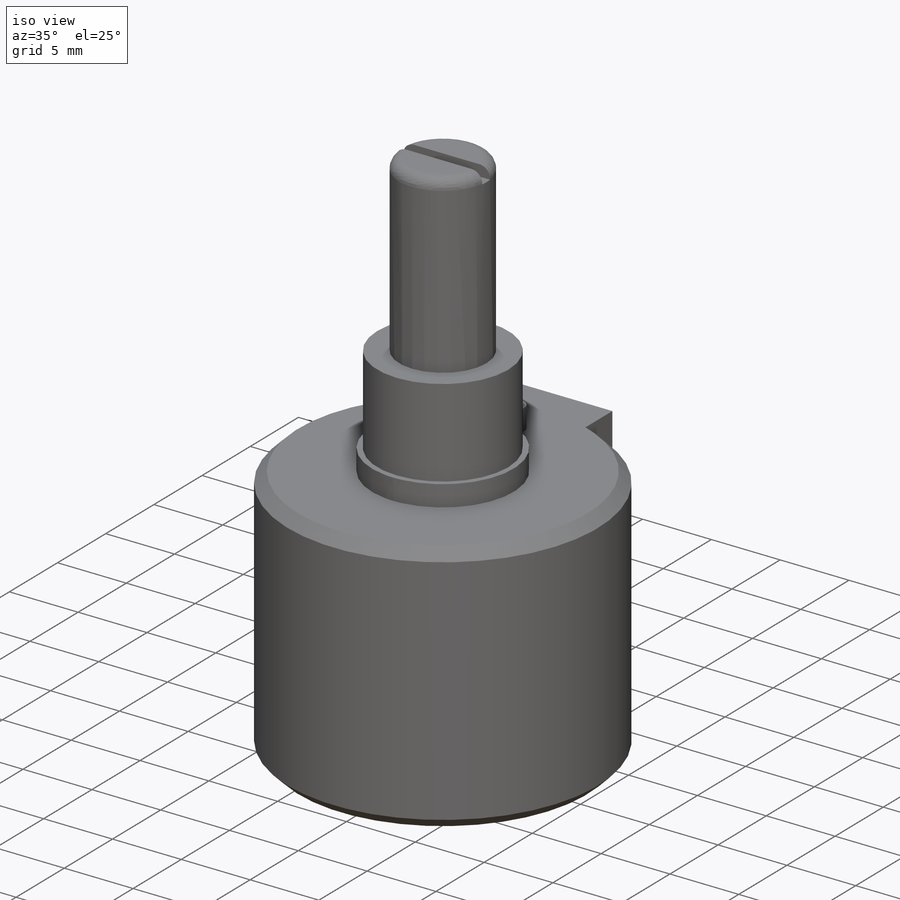
[diagram: iso view]
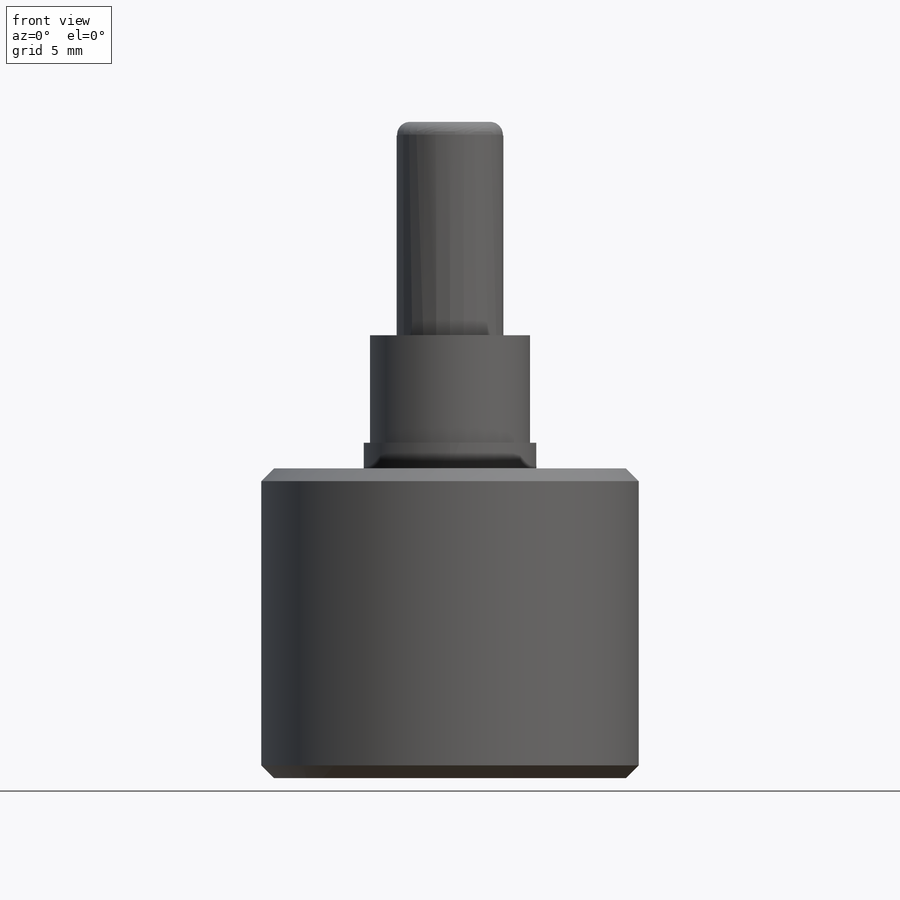
[diagram: front view]
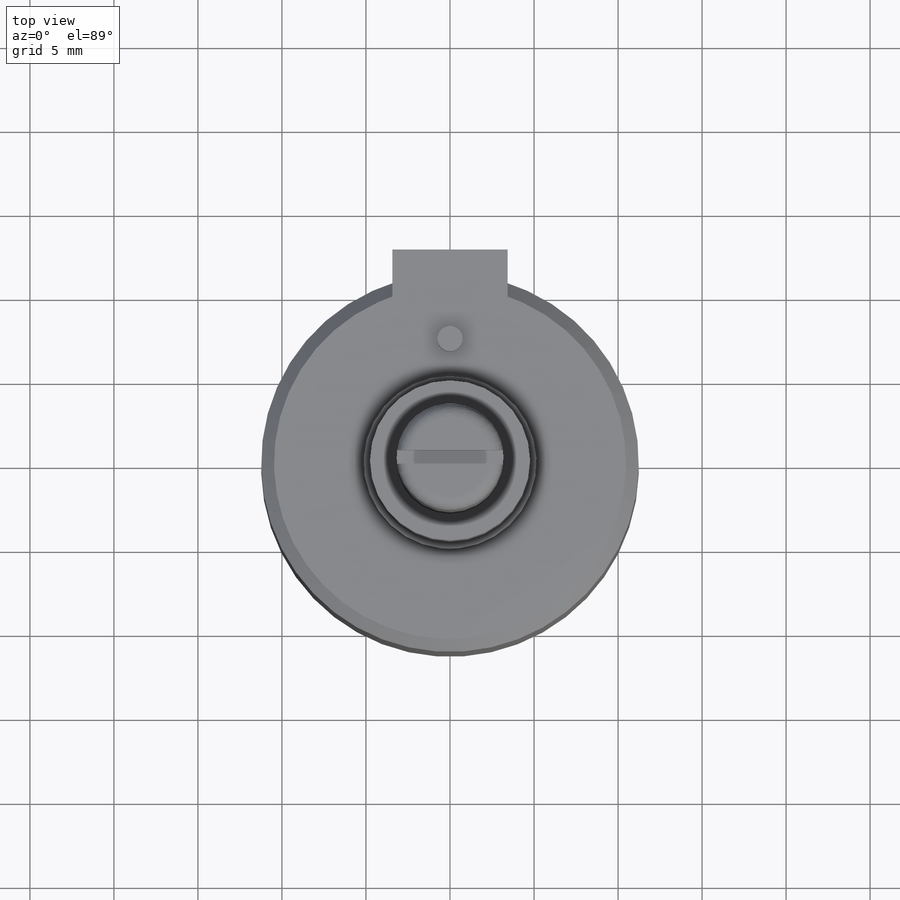
[diagram: top view]
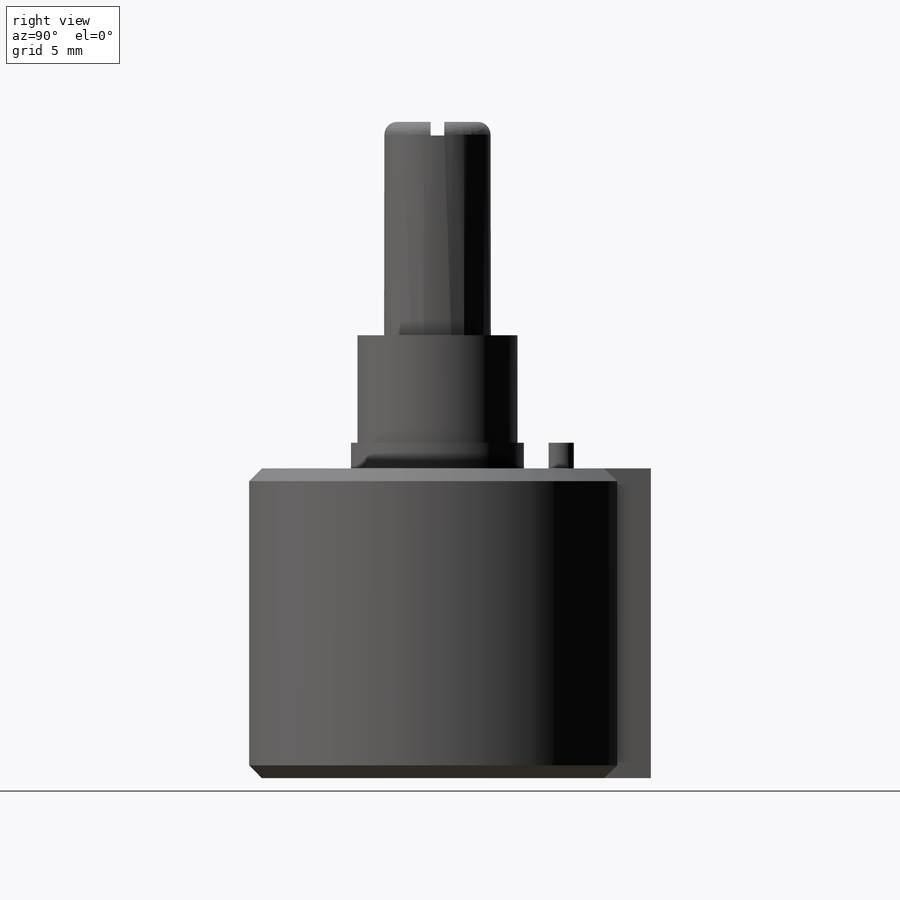
[diagram: right view]
SOLIDWORKS PART (.sldprt)
format: sldprt  version: not decoded by parser v0  size: 198,656 bytes
history: native  units: mm
features: sketch x5, extrude x4, material x1, thread x1, fillet x1, cut_extrude x1, chamfer x1 (+12 scaffold rows collapsed)
feature tree (26):
  scaffold x12  (default folders/planes/origin — collapsed)
  material  "Material <not specified>"
  sketch  "Sketch1"  dims[D1=22.479mm D2=6.858mm D3=12.7mm]
  extrude  "Body"  Depth=18.4404mm
  sketch  "Sketch3"  dims[D1=10.287mm D2=1.4986mm D3=7.366mm]
  extrude  "Boss-Extrude2"  Depth=1.524mm
  sketch  "Sketch4"  dims[D1=9.525mm]
  extrude  "Mount Lug"  [1 undecoded]
  thread  "Cosmetic Thread1"  Diameter=9.3472mm  [1 undecoded]
  sketch  "Sketch5"  dims[D1=6.35mm]
  extrude  "Shaft"  Depth=12.7mm
  fillet  "Fillet1"  Radius=0.762mm
  sketch  "Sketch6"  dims[D1=0.8128mm D2=1.6256mm]
  cut_extrude  "Adj. slot"  [1 undecoded]
  chamfer  "Chamfer1"  Distance=0.762mm Angle=45deg
decode coverage: 11 of 13 modeling features carry decoded parameters
note: 3 parameter values undecoded
note: suppression state not decoded; provenance and decode notes live in map.json
